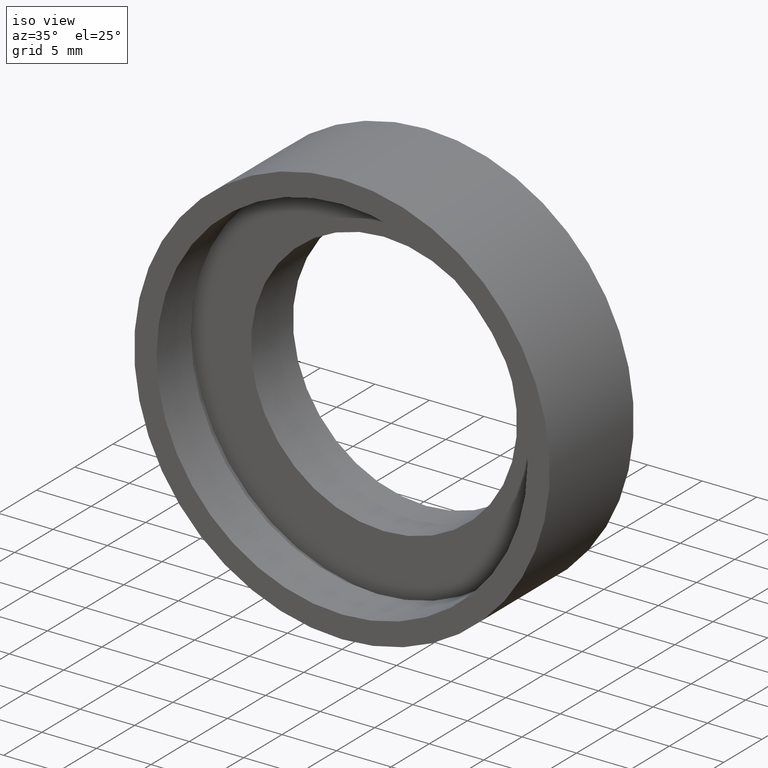
[diagram: clean part render]
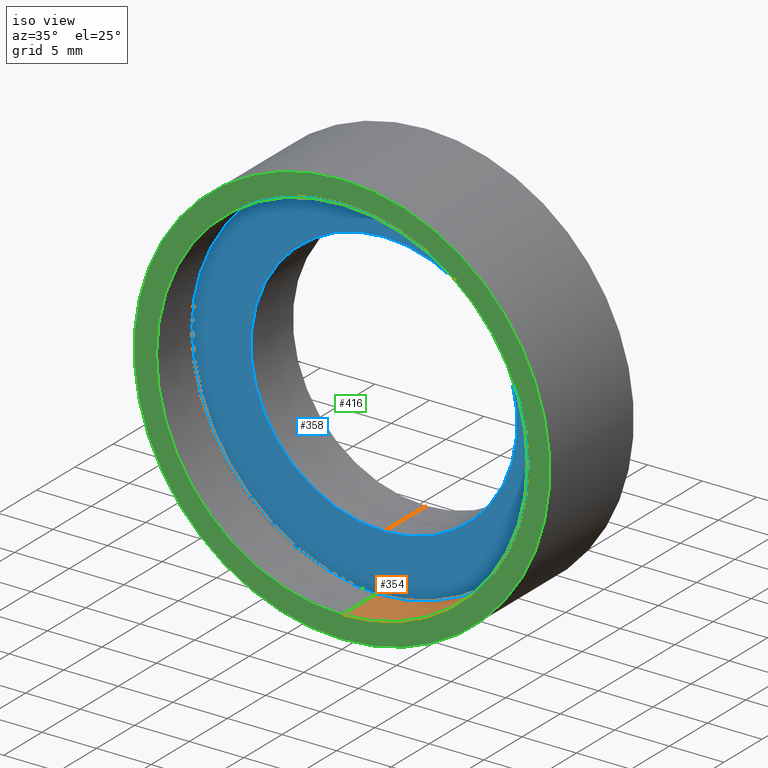
[diagram: same view with three faces highlighted in distinct colors, each labeled with its STEP entity id]
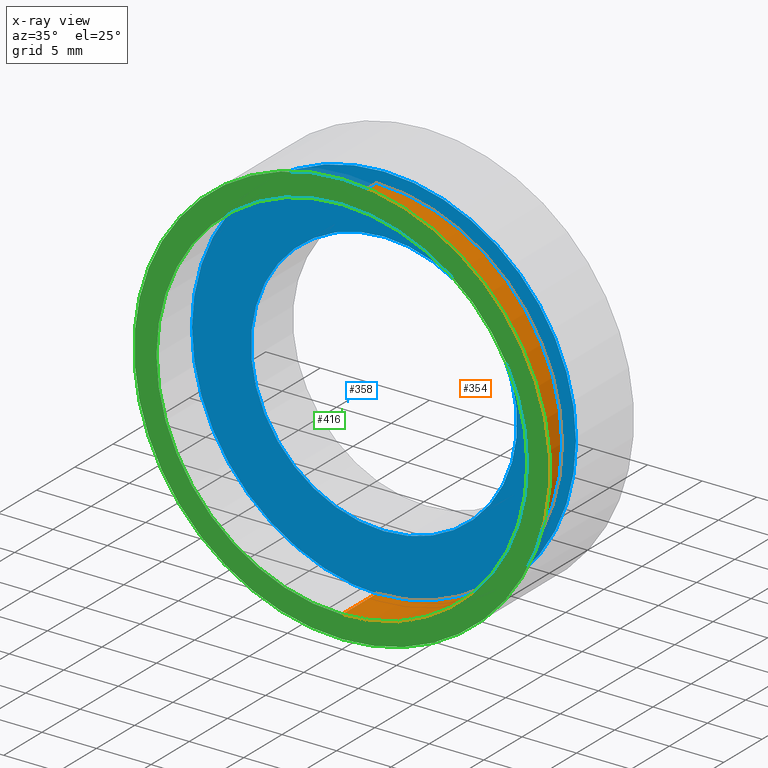
[diagram: x-ray of the same camera — body ghosted, the three highlighted faces saturated]
A machine part, iso view with three faces highlighted in distinct colors.
The next image is the same camera in x-ray (body ghosted, the three faces saturated) — at least one of them is partly hidden behind the body in this view.
Their STEP definitions:

[orange] entity #354 — the highlighted cylindrical surface (partial cylindrical patch) has radius 17 mm, axis along (-0, 1, -0).
#3 = DIRECTION ( 'NONE',  ( 0.0000000000000000000, 0.0000000000000000000, 1.000000000000000000 ) ) ;
#10 = CARTESIAN_POINT ( 'NONE',  ( 0.0000000000000000000, 0.0000000000000000000, 17.00000000000000700 ) ) ;
#15 = EDGE_LOOP ( 'NONE', ( #184, #426, #256, #110 ) ) ;
#18 = EDGE_CURVE ( 'NONE', #318, #300, #360, .T. ) ;
#26 = DIRECTION ( 'NONE',  ( -0.0000000000000000000, 1.000000000000000000, -0.0000000000000000000 ) ) ;
#46 = DIRECTION ( 'NONE',  ( -0.0000000000000000000, 1.000000000000000000, -0.0000000000000000000 ) ) ;
#57 = AXIS2_PLACEMENT_3D ( 'NONE', #240, #415, #3 ) ;
#73 = CIRCLE ( 'NONE', #57, 17.00000000000000700 ) ;
#81 = CARTESIAN_POINT ( 'NONE',  ( 0.0000000000000000000, 4.499999999999997300, 17.00000000000000700 ) ) ;
#85 = LINE ( 'NONE', #351, #220 ) ;
#86 = VERTEX_POINT ( 'NONE', #10 ) ;
#102 = AXIS2_PLACEMENT_3D ( 'NONE', #372, #263, #106 ) ;
#106 = DIRECTION ( 'NONE',  ( 0.0000000000000000000, 0.0000000000000000000, 1.000000000000000000 ) ) ;
#110 = ORIENTED_EDGE ( 'NONE', *, *, #18, .T. ) ;
#123 = AXIS2_PLACEMENT_3D ( 'NONE', #427, #419, #382 ) ;
#129 = VERTEX_POINT ( 'NONE', #402 ) ;
#134 = VECTOR ( 'NONE', #46, 1000.000000000000000 ) ;
#184 = ORIENTED_EDGE ( 'NONE', *, *, #304, .F. ) ;
#220 = VECTOR ( 'NONE', #26, 1000.000000000000000 ) ;
#221 = FACE_OUTER_BOUND ( 'NONE', #15, .T. ) ;
#225 = CYLINDRICAL_SURFACE ( 'NONE', #102, 17.00000000000000700 ) ;
#240 = CARTESIAN_POINT ( 'NONE',  ( 0.0000000000000000000, 0.0000000000000000000, 0.0000000000000000000 ) ) ;
#256 = ORIENTED_EDGE ( 'NONE', *, *, #373, .T. ) ;
#263 = DIRECTION ( 'NONE',  ( -0.0000000000000000000, 1.000000000000000000, -0.0000000000000000000 ) ) ;
#275 = LINE ( 'NONE', #287, #134 ) ;
#287 = CARTESIAN_POINT ( 'NONE',  ( 0.0000000000000000000, 60.02082041425541100, 17.00000000000000700 ) ) ;
#292 = CARTESIAN_POINT ( 'NONE',  ( 2.081899558550501500E-015, 4.499999999999997300, -17.00000000000000700 ) ) ;
#300 = VERTEX_POINT ( 'NONE', #292 ) ;
#304 = EDGE_CURVE ( 'NONE', #129, #300, #85, .T. ) ;
#313 = EDGE_CURVE ( 'NONE', #86, #129, #73, .T. ) ;
#318 = VERTEX_POINT ( 'NONE', #81 ) ;
#351 = CARTESIAN_POINT ( 'NONE',  ( 2.081899558550501500E-015, 60.02082041425541100, -17.00000000000000700 ) ) ;
#354 = ADVANCED_FACE ( 'NONE', ( #221 ), #225, .F. ) ;
#360 = CIRCLE ( 'NONE', #123, 17.00000000000000700 ) ;
#372 = CARTESIAN_POINT ( 'NONE',  ( 0.0000000000000000000, 60.02082041425541100, 0.0000000000000000000 ) ) ;
#373 = EDGE_CURVE ( 'NONE', #86, #318, #275, .T. ) ;
#382 = DIRECTION ( 'NONE',  ( 0.0000000000000000000, 0.0000000000000000000, 1.000000000000000000 ) ) ;
#402 = CARTESIAN_POINT ( 'NONE',  ( 2.081899558550501500E-015, 0.0000000000000000000, -17.00000000000000700 ) ) ;
#415 = DIRECTION ( 'NONE',  ( -0.0000000000000000000, 1.000000000000000000, -0.0000000000000000000 ) ) ;
#419 = DIRECTION ( 'NONE',  ( -0.0000000000000000000, 1.000000000000000000, -0.0000000000000000000 ) ) ;
#426 = ORIENTED_EDGE ( 'NONE', *, *, #313, .F. ) ;
#427 = CARTESIAN_POINT ( 'NONE',  ( 0.0000000000000000000, 4.499999999999997300, 0.0000000000000000000 ) ) ;

[blue] entity #358 — the highlighted planar face has unit normal (-0, 1, 0).
#7 = CIRCLE ( 'NONE', #50, 12.20000000000000600 ) ;
#22 = DIRECTION ( 'NONE',  ( 0.0000000000000000000, 0.0000000000000000000, 1.000000000000000000 ) ) ;
#27 = CARTESIAN_POINT ( 'NONE',  ( 0.0000000000000000000, 5.499999999999998200, 17.60000000000001200 ) ) ;
#39 = DIRECTION ( 'NONE',  ( 0.0000000000000000000, 0.0000000000000000000, 1.000000000000000000 ) ) ;
#45 = CIRCLE ( 'NONE', #265, 12.20000000000000600 ) ;
#49 = DIRECTION ( 'NONE',  ( -0.0000000000000000000, 1.000000000000000000, -0.0000000000000000000 ) ) ;
#50 = AXIS2_PLACEMENT_3D ( 'NONE', #392, #147, #80 ) ;
#58 = CARTESIAN_POINT ( 'NONE',  ( 0.0000000000000000000, 5.499999999999998200, 0.0000000000000000000 ) ) ;
#80 = DIRECTION ( 'NONE',  ( 0.0000000000000000000, 0.0000000000000000000, 1.000000000000000000 ) ) ;
#90 = AXIS2_PLACEMENT_3D ( 'NONE', #58, #332, #22 ) ;
#128 = VERTEX_POINT ( 'NONE', #27 ) ;
#131 = DIRECTION ( 'NONE',  ( -0.0000000000000000000, 1.000000000000000000, 0.0000000000000000000 ) ) ;
#138 = FACE_OUTER_BOUND ( 'NONE', #241, .T. ) ;
#145 = AXIS2_PLACEMENT_3D ( 'NONE', #431, #131, #219 ) ;
#147 = DIRECTION ( 'NONE',  ( -0.0000000000000000000, 1.000000000000000000, -0.0000000000000000000 ) ) ;
#152 = DIRECTION ( 'NONE',  ( 0.0000000000000000000, 0.0000000000000000000, 1.000000000000000000 ) ) ;
#153 = EDGE_CURVE ( 'NONE', #156, #170, #45, .T. ) ;
#155 = ORIENTED_EDGE ( 'NONE', *, *, #185, .F. ) ;
#156 = VERTEX_POINT ( 'NONE', #205 ) ;
#157 = DIRECTION ( 'NONE',  ( -0.0000000000000000000, 1.000000000000000000, -0.0000000000000000000 ) ) ;
#170 = VERTEX_POINT ( 'NONE', #418 ) ;
#185 = EDGE_CURVE ( 'NONE', #326, #128, #390, .T. ) ;
#205 = CARTESIAN_POINT ( 'NONE',  ( 1.494069094959771600E-015, 5.499999999999998200, -12.20000000000000600 ) ) ;
#219 = DIRECTION ( 'NONE',  ( 0.0000000000000000000, 0.0000000000000000000, 1.000000000000000000 ) ) ;
#236 = FACE_BOUND ( 'NONE', #290, .T. ) ;
#241 = EDGE_LOOP ( 'NONE', ( #294, #155 ) ) ;
#260 = AXIS2_PLACEMENT_3D ( 'NONE', #410, #49, #39 ) ;
#265 = AXIS2_PLACEMENT_3D ( 'NONE', #363, #157, #152 ) ;
#285 = CIRCLE ( 'NONE', #90, 17.60000000000001200 ) ;
#289 = ORIENTED_EDGE ( 'NONE', *, *, #319, .T. ) ;
#290 = EDGE_LOOP ( 'NONE', ( #289, #305 ) ) ;
#294 = ORIENTED_EDGE ( 'NONE', *, *, #362, .F. ) ;
#305 = ORIENTED_EDGE ( 'NONE', *, *, #153, .T. ) ;
#319 = EDGE_CURVE ( 'NONE', #170, #156, #7, .T. ) ;
#326 = VERTEX_POINT ( 'NONE', #383 ) ;
#332 = DIRECTION ( 'NONE',  ( -0.0000000000000000000, 1.000000000000000000, -0.0000000000000000000 ) ) ;
#358 = ADVANCED_FACE ( 'NONE', ( #138, #236 ), #423, .F. ) ;
#362 = EDGE_CURVE ( 'NONE', #128, #326, #285, .T. ) ;
#363 = CARTESIAN_POINT ( 'NONE',  ( 0.0000000000000000000, 5.499999999999998200, 0.0000000000000000000 ) ) ;
#383 = CARTESIAN_POINT ( 'NONE',  ( 2.155378366499343200E-015, 5.499999999999998200, -17.60000000000001200 ) ) ;
#390 = CIRCLE ( 'NONE', #260, 17.60000000000001200 ) ;
#392 = CARTESIAN_POINT ( 'NONE',  ( 0.0000000000000000000, 5.499999999999998200, 0.0000000000000000000 ) ) ;
#410 = CARTESIAN_POINT ( 'NONE',  ( 0.0000000000000000000, 5.499999999999998200, 0.0000000000000000000 ) ) ;
#418 = CARTESIAN_POINT ( 'NONE',  ( 0.0000000000000000000, 5.499999999999998200, 12.20000000000000600 ) ) ;
#423 = PLANE ( 'NONE',  #145 ) ;
#431 = CARTESIAN_POINT ( 'NONE',  ( 17.60000000000001200, 5.499999999999998200, 0.0000000000000000000 ) ) ;

[green] entity #416 — the highlighted planar face has unit normal (-0, 1, 0).
#3 = DIRECTION ( 'NONE',  ( 0.0000000000000000000, 0.0000000000000000000, 1.000000000000000000 ) ) ;
#10 = CARTESIAN_POINT ( 'NONE',  ( 0.0000000000000000000, 0.0000000000000000000, 17.00000000000000700 ) ) ;
#31 = DIRECTION ( 'NONE',  ( 0.0000000000000000000, 0.0000000000000000000, 1.000000000000000000 ) ) ;
#57 = AXIS2_PLACEMENT_3D ( 'NONE', #240, #415, #3 ) ;
#64 = DIRECTION ( 'NONE',  ( -0.0000000000000000000, 1.000000000000000000, -0.0000000000000000000 ) ) ;
#73 = CIRCLE ( 'NONE', #57, 17.00000000000000700 ) ;
#86 = VERTEX_POINT ( 'NONE', #10 ) ;
#97 = DIRECTION ( 'NONE',  ( -0.0000000000000000000, 1.000000000000000000, 0.0000000000000000000 ) ) ;
#103 = CIRCLE ( 'NONE', #148, 19.05000000000000400 ) ;
#113 = AXIS2_PLACEMENT_3D ( 'NONE', #193, #64, #116 ) ;
#116 = DIRECTION ( 'NONE',  ( 0.0000000000000000000, 0.0000000000000000000, 1.000000000000000000 ) ) ;
#129 = VERTEX_POINT ( 'NONE', #402 ) ;
#148 = AXIS2_PLACEMENT_3D ( 'NONE', #405, #315, #31 ) ;
#165 = ORIENTED_EDGE ( 'NONE', *, *, #313, .T. ) ;
#166 = ORIENTED_EDGE ( 'NONE', *, *, #376, .F. ) ;
#174 = EDGE_LOOP ( 'NONE', ( #165, #187 ) ) ;
#176 = CIRCLE ( 'NONE', #113, 19.05000000000000400 ) ;
#187 = ORIENTED_EDGE ( 'NONE', *, *, #400, .T. ) ;
#189 = CARTESIAN_POINT ( 'NONE',  ( 0.0000000000000000000, 0.0000000000000000000, 19.05000000000000400 ) ) ;
#193 = CARTESIAN_POINT ( 'NONE',  ( 0.0000000000000000000, 0.0000000000000000000, 0.0000000000000000000 ) ) ;
#204 = CIRCLE ( 'NONE', #208, 17.00000000000000700 ) ;
#208 = AXIS2_PLACEMENT_3D ( 'NONE', #276, #395, #340 ) ;
#240 = CARTESIAN_POINT ( 'NONE',  ( 0.0000000000000000000, 0.0000000000000000000, 0.0000000000000000000 ) ) ;
#261 = FACE_OUTER_BOUND ( 'NONE', #394, .T. ) ;
#270 = DIRECTION ( 'NONE',  ( 0.0000000000000000000, 0.0000000000000000000, 1.000000000000000000 ) ) ;
#276 = CARTESIAN_POINT ( 'NONE',  ( 0.0000000000000000000, 0.0000000000000000000, 0.0000000000000000000 ) ) ;
#283 = PLANE ( 'NONE',  #330 ) ;
#288 = CARTESIAN_POINT ( 'NONE',  ( 2.332952152375708400E-015, 0.0000000000000000000, -19.05000000000000400 ) ) ;
#301 = CARTESIAN_POINT ( 'NONE',  ( 19.05000000000000400, -5.143516556418878000E-016, 0.0000000000000000000 ) ) ;
#306 = FACE_BOUND ( 'NONE', #174, .T. ) ;
#313 = EDGE_CURVE ( 'NONE', #86, #129, #73, .T. ) ;
#315 = DIRECTION ( 'NONE',  ( -0.0000000000000000000, 1.000000000000000000, -0.0000000000000000000 ) ) ;
#330 = AXIS2_PLACEMENT_3D ( 'NONE', #301, #97, #270 ) ;
#340 = DIRECTION ( 'NONE',  ( 0.0000000000000000000, 0.0000000000000000000, 1.000000000000000000 ) ) ;
#344 = VERTEX_POINT ( 'NONE', #288 ) ;
#361 = ORIENTED_EDGE ( 'NONE', *, *, #365, .F. ) ;
#365 = EDGE_CURVE ( 'NONE', #344, #374, #176, .T. ) ;
#374 = VERTEX_POINT ( 'NONE', #189 ) ;
#376 = EDGE_CURVE ( 'NONE', #374, #344, #103, .T. ) ;
#394 = EDGE_LOOP ( 'NONE', ( #166, #361 ) ) ;
#395 = DIRECTION ( 'NONE',  ( -0.0000000000000000000, 1.000000000000000000, -0.0000000000000000000 ) ) ;
#400 = EDGE_CURVE ( 'NONE', #129, #86, #204, .T. ) ;
#402 = CARTESIAN_POINT ( 'NONE',  ( 2.081899558550501500E-015, 0.0000000000000000000, -17.00000000000000700 ) ) ;
#405 = CARTESIAN_POINT ( 'NONE',  ( 0.0000000000000000000, 0.0000000000000000000, 0.0000000000000000000 ) ) ;
#415 = DIRECTION ( 'NONE',  ( -0.0000000000000000000, 1.000000000000000000, -0.0000000000000000000 ) ) ;
#416 = ADVANCED_FACE ( 'NONE', ( #261, #306 ), #283, .F. ) ;